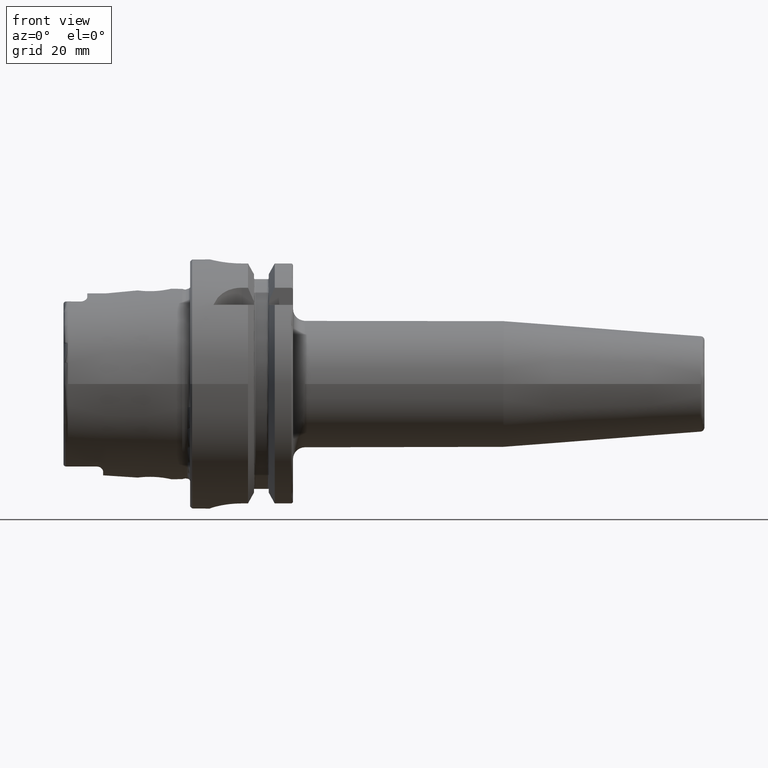
[diagram: clean part render]
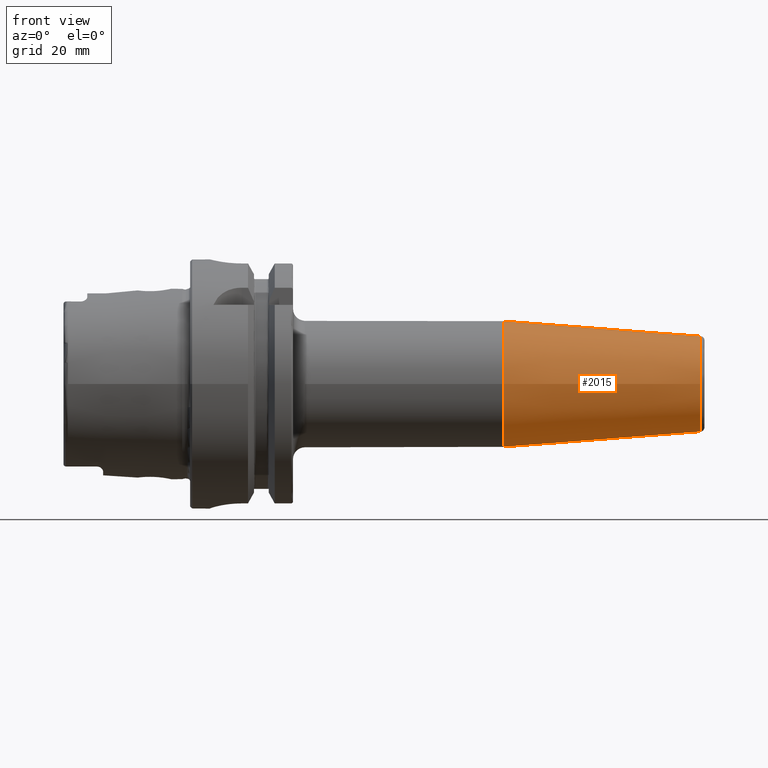
[diagram: same view with one face highlighted and labeled with its STEP entity id]
A machine part, front view. The second image highlights one B-rep face of the part: STEP entity #2015.
In plain terms, the highlighted conical surface has half-angle 4.5 deg.
Its self-contained STEP definition (entity closure, byte-faithful):
#222=FACE_OUTER_BOUND('',#346,.T.);
#346=EDGE_LOOP('',(#1381,#1382,#1383,#1384,#1385));
#474=LINE('',#3079,#584);
#584=VECTOR('',#2460,14.);
#698=CIRCLE('',#2170,12.0725268420749);
#699=CIRCLE('',#2171,12.0725268420749);
#700=CIRCLE('',#2173,16.);
#829=VERTEX_POINT('',#3072);
#830=VERTEX_POINT('',#3074);
#831=VERTEX_POINT('',#3078);
#1043=EDGE_CURVE('',#829,#830,#698,.T.);
#1044=EDGE_CURVE('',#830,#829,#699,.T.);
#1045=EDGE_CURVE('',#830,#831,#474,.T.);
#1046=EDGE_CURVE('',#831,#831,#700,.T.);
#1381=ORIENTED_EDGE('',*,*,#1044,.F.);
#1382=ORIENTED_EDGE('',*,*,#1045,.T.);
#1383=ORIENTED_EDGE('',*,*,#1046,.T.);
#1384=ORIENTED_EDGE('',*,*,#1045,.F.);
#1385=ORIENTED_EDGE('',*,*,#1043,.F.);
#1992=CONICAL_SURFACE('',#2172,14.,0.0785398163397453);
#2015=ADVANCED_FACE('',(#222),#1992,.T.);
#2170=AXIS2_PLACEMENT_3D('',#3075,#2454,#2455);
#2171=AXIS2_PLACEMENT_3D('',#3076,#2456,#2457);
#2172=AXIS2_PLACEMENT_3D('',#3077,#2458,#2459);
#2173=AXIS2_PLACEMENT_3D('',#3080,#2461,#2462);
#2454=DIRECTION('center_axis',(1.,0.,0.));
#2455=DIRECTION('ref_axis',(0.,-1.,3.06161699786838E-17));
#2456=DIRECTION('center_axis',(1.,0.,0.));
#2457=DIRECTION('ref_axis',(0.,-1.,3.06161699786838E-17));
#2458=DIRECTION('center_axis',(-1.,0.,0.));
#2459=DIRECTION('ref_axis',(0.,1.,0.));
#2460=DIRECTION('',(-0.996917333733128,-0.0784590957278454,-9.60846804471016E-18));
#2461=DIRECTION('center_axis',(1.,0.,0.));
#2462=DIRECTION('ref_axis',(0.,0.,-1.));
#3072=CARTESIAN_POINT('',(129.078459095728,-1.47845813547676E-15,12.0725268420749));
#3074=CARTESIAN_POINT('',(129.078459095728,-12.0725268420749,-1.47845813547676E-15));
#3075=CARTESIAN_POINT('Origin',(129.078459095728,0.,-1.84807266934594E-15));
#3076=CARTESIAN_POINT('Origin',(129.078459095728,0.,-1.84807266934594E-15));
#3077=CARTESIAN_POINT('Origin',(104.587590527651,0.,0.));
#3078=CARTESIAN_POINT('',(79.1751810553015,-16.,-1.95943487863577E-15));
#3079=CARTESIAN_POINT('',(104.587590527651,-14.,-1.71450551880629E-15));
#3080=CARTESIAN_POINT('Origin',(79.1751810553015,0.,0.));